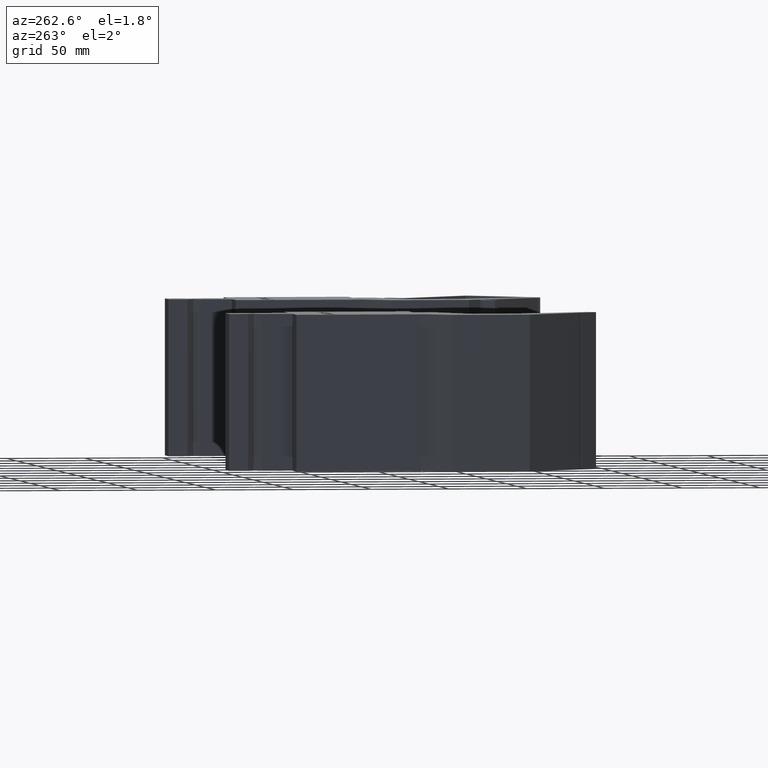
[diagram: clean part render]
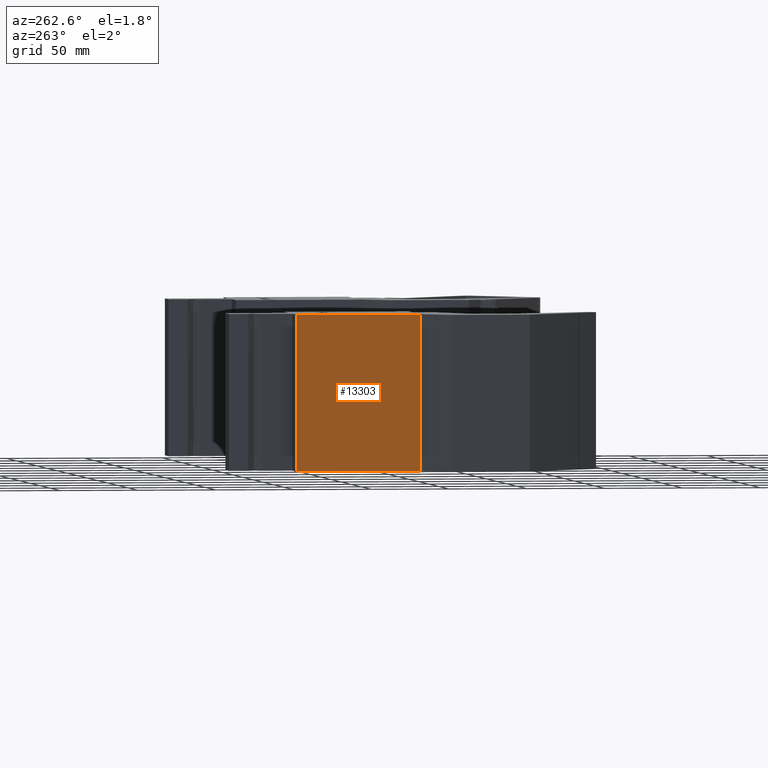
[diagram: same view with one face highlighted and labeled with its STEP entity id]
A machine part, auxiliary view. The second image highlights one B-rep face of the part: STEP entity #13303.
In plain terms, the highlighted face is a SurfaceOfExtrusion surface.
Its self-contained STEP definition (entity closure, byte-faithful):
#9412=CARTESIAN_POINT('',(-5.999999828958E1,7.999998336487E1,0.E0));
#9417=CARTESIAN_POINT('',(-5.999999828958E1,7.999998336487E1,0.E0));
#9418=CARTESIAN_POINT('',(-5.999999828958E1,5.333332224325E1,0.E0));
#9419=CARTESIAN_POINT('',(-5.999999828958E1,2.666666112162E1,0.E0));
#9420=CARTESIAN_POINT('',(-5.999999828958E1,0.E0,0.E0));
#9680=DIRECTION('',(0.E0,0.E0,1.E0));
#9681=VECTOR('',#9680,1.E2);
#9682=CARTESIAN_POINT('',(-5.999999828958E1,0.E0,0.E0));
#9683=LINE('',#9682,#9681);
#9687=DIRECTION('',(0.E0,0.E0,1.E0));
#9688=VECTOR('',#9687,1.E2);
#9689=CARTESIAN_POINT('',(-5.999999828958E1,7.999998336487E1,0.E0));
#9690=LINE('',#9689,#9688);
#9929=CARTESIAN_POINT('',(-5.999999828958E1,7.999998336487E1,1.E2));
#9930=CARTESIAN_POINT('',(-5.999999828958E1,5.333332224325E1,1.E2));
#9931=CARTESIAN_POINT('',(-5.999999828958E1,2.666666112162E1,1.E2));
#9932=CARTESIAN_POINT('',(-5.999999828958E1,0.E0,1.E2));
#9940=CARTESIAN_POINT('',(-5.999999828958E1,7.999998336487E1,1.E2));
#12214=VERTEX_POINT('',#9412);
#12215=VERTEX_POINT('',#9420);
#12246=VERTEX_POINT('',#9940);
#12247=VERTEX_POINT('',#9932);
#13281=CARTESIAN_POINT('',(-5.999999828958E1,8.159998303217E1,0.E0));
#13282=CARTESIAN_POINT('',(-5.999999828958E1,8.106664980974E1,0.E0));
#13283=CARTESIAN_POINT('',(-5.999999828958E1,7.636665078705E1,0.E0));
#13284=CARTESIAN_POINT('',(-5.999999828958E1,4.916665644300E1,0.E0));
#13285=CARTESIAN_POINT('',(-5.999999828958E1,2.196666209894E1,0.E0));
#13286=CARTESIAN_POINT('',(-5.999999828958E1,-1.066666444865E0,0.E0));
#13287=CARTESIAN_POINT('',(-5.999999828958E1,-1.599999667297E0,0.E0));
#13292=DIRECTION('',(0.E0,0.E0,1.E0));
#13293=VECTOR('',#13292,1.E0);
#13294=SURFACE_OF_LINEAR_EXTRUSION('',#13288,#13293);
#13295=ORIENTED_EDGE('',*,*,#12601,.F.);
#13297=ORIENTED_EDGE('',*,*,#13296,.T.);
#13299=ORIENTED_EDGE('',*,*,#13298,.T.);
#13300=ORIENTED_EDGE('',*,*,#13261,.F.);
#13301=EDGE_LOOP('',(#13295,#13297,#13299,#13300));
#13302=FACE_OUTER_BOUND('',#13301,.F.);
#13303=ADVANCED_FACE('',(#13302),#13294,.T.);
#9421=B_SPLINE_CURVE_WITH_KNOTS('',3,(#9417,#9418,#9419,#9420),.UNSPECIFIED.,
.F.,.F.,(4,4),(0.E0,1.E0),.UNSPECIFIED.);
#9933=B_SPLINE_CURVE_WITH_KNOTS('',3,(#9929,#9930,#9931,#9932),.UNSPECIFIED.,
.F.,.F.,(4,4),(0.E0,1.E0),.UNSPECIFIED.);
#12601=EDGE_CURVE('',#12214,#12215,#9421,.T.);
#13261=EDGE_CURVE('',#12215,#12247,#9683,.T.);
#13288=B_SPLINE_CURVE_WITH_KNOTS('',3,(#13281,#13282,#13283,#13284,#13285,
#13286,#13287),.UNSPECIFIED.,.F.,.F.,(4,1,1,1,4),(0.E0,1.923076923077E-2,
1.694711538462E-1,9.807692307692E-1,1.E0),.UNSPECIFIED.);
#13296=EDGE_CURVE('',#12214,#12246,#9690,.T.);
#13298=EDGE_CURVE('',#12246,#12247,#9933,.T.);